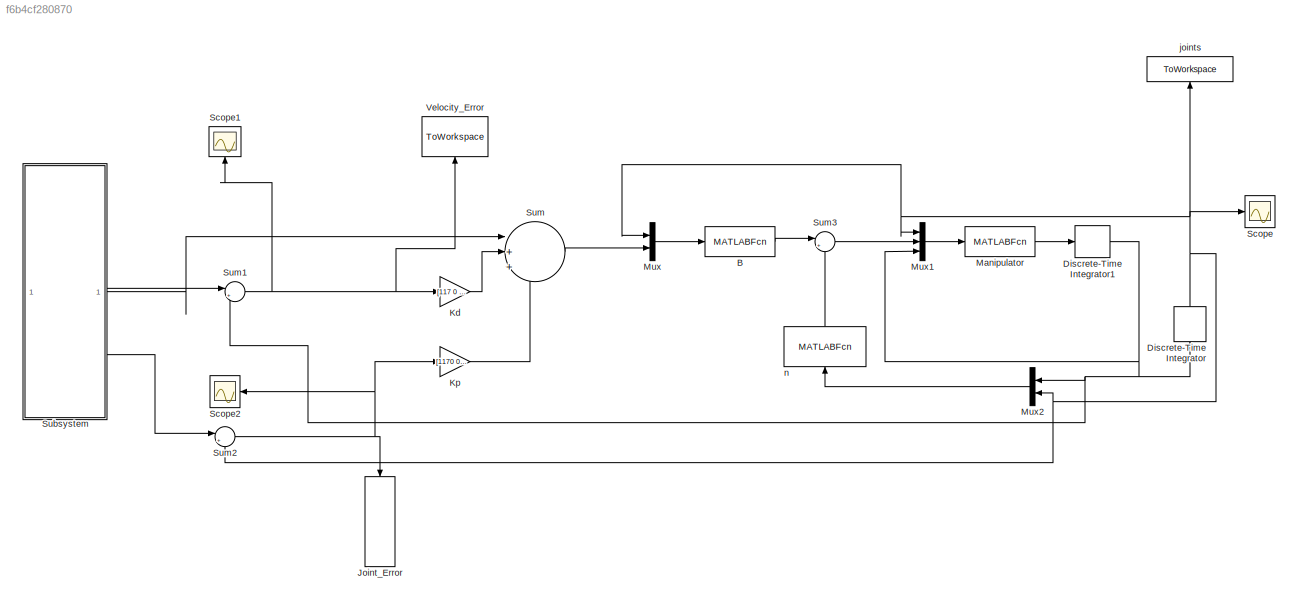
MODEL mdl_f6b4cf280870
KIND model
CONFIG AbsTol = auto
CONFIG EnableMultiTasking = off
CONFIG FixedStep = auto
CONFIG MaxStep = auto
CONFIG MinStep = auto
CONFIG RelTol = 1e-3
CONFIG SampleTimeConstraint = Unconstrained
CONFIG SolverName = VariableStepAuto
CONFIG StartTime = 0.0
CONFIG StopTime = 10.0
BLOCK [MATLABFcn] B
  MATLABFcn = B
  OutputDimensions = 4
BLOCK [DiscreteIntegrator] Discrete-Time Integrator
  ICPrevOutput = DiscIntNeverNeededParam
  ICPrevScaledInput = DiscIntNeverNeededParam
  InitialCondition = q0
  InitialConditionSetting = Auto
  LimitOutput = on
  LowerSaturationLimit = [-inf;-inf;-inf;-inf]
  NameLocation = right
  SampleTime = Tc
  UpperSaturationLimit = [inf;inf;inf;inf]
BLOCK [DiscreteIntegrator] Discrete-Time Integrator1
  ICPrevOutput = DiscIntNeverNeededParam
  ICPrevScaledInput = DiscIntNeverNeededParam
  InitialCondition = q0
  InitialConditionSetting = Auto
  SampleTime = 0.001
BLOCK [ToWorkspace] Joint_Error
  FixptAsFi = on
  MaxDataPoints = inf
  NameLocation = left
  SampleTime = -1
  VariableName = Joint_E
BLOCK [Gain] Kd
  Gain = [117 0 0 0;0 117 0 0;0 0 120 0;0 0 0 120]
  Multiplication = Matrix(K*u)
BLOCK [Gain] Kp
  Gain = [1170 0 0 0;0 1170 0 0;0 0 1200 0;0 0 0 1200]
  Multiplication = Matrix(K*u)
BLOCK [MATLABFcn] Manipulator
  MATLABFcn = manipulator
  OutputDimensions = 4
BLOCK [Mux] Mux
  DisplayOption = bar
  Inputs = 2
BLOCK [Mux] Mux1
  DisplayOption = bar
  Inputs = 3
BLOCK [Mux] Mux2
  DisplayOption = bar
  Inputs = 2
  NameLocation = top
BLOCK [Scope] Scope
  Floating = off
  NumInputPorts = 1
  ScopeSpecificationString = Simulink.scopes.TimeScopeBlockCfg('CurrentConfiguration', extmgr.ConfigurationSet(extmgr.Configuration('Core','General UI',true),extmgr.Configuration('Core','Source UI',true),extmgr.Configuration('Sources','WiredSimulink',true,'DataLoggingVariableName','ScopeData1'),extmgr.Configuration('Visuals','Time Domain',true,'SerializedDisplays',{struct('MinYLimReal','-2.16688','MaxYLimReal','6.58105','YLab...<+1409ch>
BLOCK [Scope] Scope1
  Floating = off
  NameLocation = right
  NumInputPorts = 1
  ScopeSpecificationString = Simulink.scopes.TimeScopeBlockCfg('CurrentConfiguration', extmgr.ConfigurationSet(extmgr.Configuration('Core','General UI',true),extmgr.Configuration('Core','Source UI',true),extmgr.Configuration('Sources','WiredSimulink',true,'DataLoggingVariableName','ScopeData2'),extmgr.Configuration('Visuals','Time Domain',true,'SerializedDisplays',{struct('MinYLimReal','-0.0000000000000006','MaxYLimReal','0.0...<+1509ch>
BLOCK [Scope] Scope2
  Floating = off
  NameLocation = top
  NumInputPorts = 1
  ScopeSpecificationString = Simulink.scopes.TimeScopeBlockCfg('CurrentConfiguration', extmgr.ConfigurationSet(extmgr.Configuration('Core','General UI',true),extmgr.Configuration('Core','Source UI',true),extmgr.Configuration('Sources','WiredSimulink',true),extmgr.Configuration('Visuals','Time Domain',true,'SerializedDisplays',{struct('MinYLimReal','-1.00000','MaxYLimReal','1.00000','YLabelReal','','MinYLimMag','0.00000','MaxY...<+1382ch>
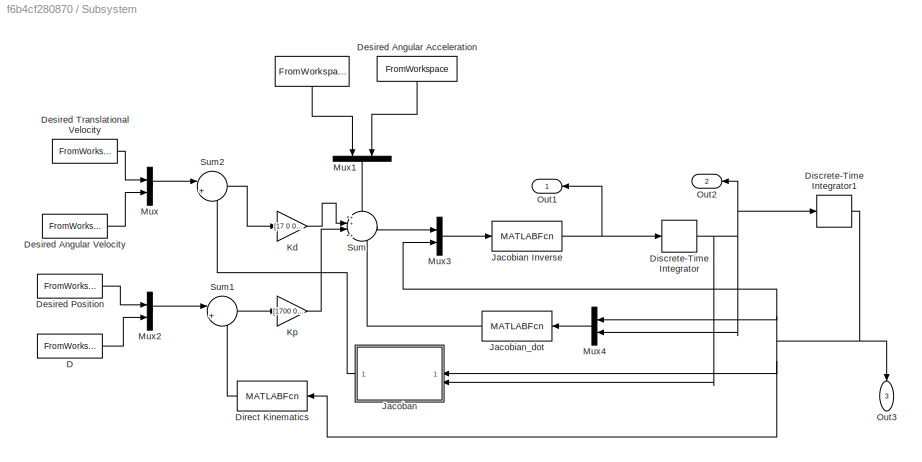
BLOCK [SubSystem] Subsystem
  NameLocation = top
BLOCK [FromWorkspace] Subsystem/ 
  NameLocation = left
  SampleTime = 0.001
  VariableName = [t,S_d_d]
BLOCK [FromWorkspace] Subsystem/D
  NameLocation = left
  SampleTime = 0.001
  VariableName = [t,theta_d]
BLOCK [FromWorkspace] Subsystem/Desired Angular Acceleration
  NameLocation = top
  SampleTime = 0.001
  VariableName = [t,theta_d_dot_dot]
BLOCK [FromWorkspace] Subsystem/Desired Angular Velocity
  NameLocation = left
  SampleTime = 0.001
  VariableName = [t,theta_d_dot]
BLOCK [FromWorkspace] Subsystem/Desired Position
  SampleTime = 0.001
  VariableName = [t,S]
BLOCK [FromWorkspace] Subsystem/Desired Translational Velocity
  NameLocation = left
  SampleTime = 0.001
  VariableName = [t,S_d]
BLOCK [MATLABFcn] Subsystem/Direct Kinematics
  MATLABFcn = direct_kin
  OutputDimensions = 4
BLOCK [DiscreteIntegrator] Subsystem/Discrete-Time Integrator
  ICPrevOutput = DiscIntNeverNeededParam
  ICPrevScaledInput = DiscIntNeverNeededParam
  InitialCondition = q0
  InitialConditionSetting = Auto
  SampleTime = Tc
BLOCK [DiscreteIntegrator] Subsystem/Discrete-Time Integrator1
  ICPrevOutput = DiscIntNeverNeededParam
  ICPrevScaledInput = DiscIntNeverNeededParam
  InitialCondition = q0
  InitialConditionSetting = Auto
  SampleTime = Tc
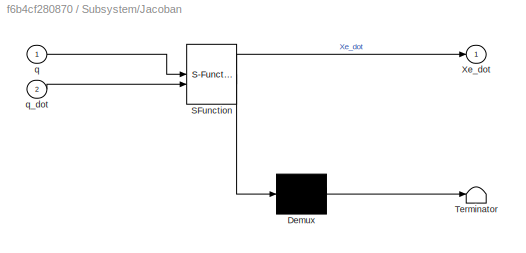
BLOCK [SubSystem] Subsystem/Jacoban 
  ErrorFcn = Stateflow.Translate.translate
  PermitHierarchicalResolution = ExplicitOnly
  SFBlockType = MATLAB Function
  TreatAsAtomicUnit = on
BLOCK [Demux] Subsystem/Jacoban / Demux 
  Outputs = 1
BLOCK [S-Function] Subsystem/Jacoban / SFunction 
  EnableBusSupport = on
  FunctionName = sf_sfun
  PortCounts = [2 2]
  SFcnIsStateOwnerBlock = off
  SFunctionDeploymentMode = off
  Tag = Stateflow S-Function 2
BLOCK [Terminator] Subsystem/Jacoban / Terminator 
BLOCK [Outport] Subsystem/Jacoban /Xe_dot
BLOCK [Inport] Subsystem/Jacoban /q
BLOCK [Inport] Subsystem/Jacoban /q_dot
  Port = 2
BLOCK [MATLABFcn] Subsystem/Jacobian Inverse
  MATLABFcn = jacobian_inverse
  OutputDimensions = 4
BLOCK [MATLABFcn] Subsystem/Jacobian_dot
  MATLABFcn = jacobian_dot
  OutputDimensions = 4
BLOCK [Gain] Subsystem/Kd
  Gain = [17 0 0 0;0 18 0 0;0 0 19 0;0 0 0 20]
  Multiplication = Matrix(K*u)
BLOCK [Gain] Subsystem/Kp
  Gain = [1700 0 0 0;0 1800 0 0;0 0 1900 0;0 0 0 2000]
  Multiplication = Matrix(K*u)
BLOCK [Mux] Subsystem/Mux
  DisplayOption = bar
  Inputs = 2
BLOCK [Mux] Subsystem/Mux1
  DisplayOption = bar
  Inputs = 2
  NameLocation = left
BLOCK [Mux] Subsystem/Mux2
  DisplayOption = bar
  Inputs = 2
BLOCK [Mux] Subsystem/Mux3
  DisplayOption = bar
  Inputs = 2
BLOCK [Mux] Subsystem/Mux4
  DisplayOption = bar
  Inputs = 2
  NameLocation = top
BLOCK [Outport] Subsystem/Out1
  NameLocation = top
BLOCK [Outport] Subsystem/Out2
  NameLocation = top
  Port = 2
BLOCK [Outport] Subsystem/Out3
  NameLocation = left
  Port = 3
BLOCK [Sum] Subsystem/Sum
  Inputs = ++|+-
BLOCK [Sum] Subsystem/Sum1
  Inputs = |+-
BLOCK [Sum] Subsystem/Sum2
  Inputs = |+-
BLOCK [Sum] Sum
  Inputs = |+++
BLOCK [Sum] Sum1
  Inputs = |+-
BLOCK [Sum] Sum2
  Inputs = |+-
BLOCK [Sum] Sum3
  Inputs = |++
BLOCK [ToWorkspace] Velocity_Error
  FixptAsFi = on
  MaxDataPoints = inf
  NameLocation = right
  SampleTime = -1
  VariableName = Velocity_E
BLOCK [ToWorkspace] joints
  FixptAsFi = on
  MaxDataPoints = inf
  NameLocation = right
  SampleTime = -1
  VariableName = Joints
BLOCK [MATLABFcn] n
  MATLABFcn = n
  NameLocation = left
  OutputDimensions = 4
LINE B:1 -> Sum3:1
NET Discrete-Time Integrator1:1 -> Discrete-Time Integrator:1, Mux1:3, Mux2:1, Sum1:2
NET Discrete-Time Integrator:1 -> Mux1:1, Mux2:2, Mux:1, Scope:1, Sum2:2, joints:1
LINE Kd:1 -> Sum:2
LINE Kp:1 -> Sum:3
LINE Manipulator:1 -> Discrete-Time Integrator1:1
LINE Mux1:1 -> Manipulator:1
LINE Mux2:1 -> n:1
LINE Mux:1 -> B:1
LINE Subsystem/ :1 -> Subsystem/Mux1:1
LINE Subsystem/D:1 -> Subsystem/Mux2:2
LINE Subsystem/Desired Angular Acceleration:1 -> Subsystem/Mux1:2
LINE Subsystem/Desired Angular Velocity:1 -> Subsystem/Mux:2
LINE Subsystem/Desired Position:1 -> Subsystem/Mux2:1
LINE Subsystem/Desired Translational Velocity:1 -> Subsystem/Mux:1
LINE Subsystem/Direct Kinematics:1 -> Subsystem/Sum1:2
NET Subsystem/Discrete-Time Integrator1:1 -> Subsystem/Direct Kinematics:1, Subsystem/Jacoban :1, Subsystem/Mux3:2, Subsystem/Mux4:1, Subsystem/Out3:1
NET Subsystem/Discrete-Time Integrator:1 -> Subsystem/Discrete-Time Integrator1:1, Subsystem/Jacoban :2, Subsystem/Mux4:2, Subsystem/Out2:1
LINE Subsystem/Jacoban :1 -> Subsystem/Sum2:2
NET Subsystem/Jacobian Inverse:1 -> Subsystem/Discrete-Time Integrator:1, Subsystem/Out1:1
LINE Subsystem/Jacobian_dot:1 -> Subsystem/Sum:4
LINE Subsystem/Kd:1 -> Subsystem/Sum:2
LINE Subsystem/Kp:1 -> Subsystem/Sum:3
LINE Subsystem/Mux1:1 -> Subsystem/Sum:1
LINE Subsystem/Mux2:1 -> Subsystem/Sum1:1
LINE Subsystem/Mux3:1 -> Subsystem/Jacobian Inverse:1
LINE Subsystem/Mux4:1 -> Subsystem/Jacobian_dot:1
LINE Subsystem/Mux:1 -> Subsystem/Sum2:1
LINE Subsystem/Sum1:1 -> Subsystem/Kp:1
LINE Subsystem/Sum2:1 -> Subsystem/Kd:1
LINE Subsystem/Sum:1 -> Subsystem/Mux3:1
LINE Subsystem:1 -> Sum:1
LINE Subsystem:2 -> Sum1:1
LINE Subsystem:3 -> Sum2:1
NET Sum1:1 -> Kd:1, Scope1:1, Velocity_Error:1
NET Sum2:1 -> Joint_Error:1, Kp:1, Scope2:1
LINE Sum3:1 -> Mux1:2
LINE Sum:1 -> Mux:2
LINE n:1 -> Sum3:2
note: NET lines group one-source signal fan-out (src -> all destinations, sorted); 1:1 wires keep LINE
CHART Subsystem/Jacoban  states=1 transitions=1
  STATE_LABEL 'eML_blk_kernel()'
  STATE_LABEL 'SCRIPT:\nfunction Xe_dot= fcn(q,q_dot)\n\n\n    theta1=q(1);\n    theta2=q(2);\n    \n    a1=0.5;\n    \n    a2=0.5;\n    \n    Jacobian=[- a2*sin(theta1 + theta2) - a1*sin(theta1), -a2*sin(theta1 + theta2), 0, 0; \n        a2*cos(theta1 + theta2) + a1*cos(theta1), a2*cos(theta1 + theta2), 0,0; \n        0, 0, -1, 0;\n        1, 1, 0, 1];\n    \n    Xe_dot=Jacobian*q_dot;\n\nend\n'
CHART  states=0 transitions=0
